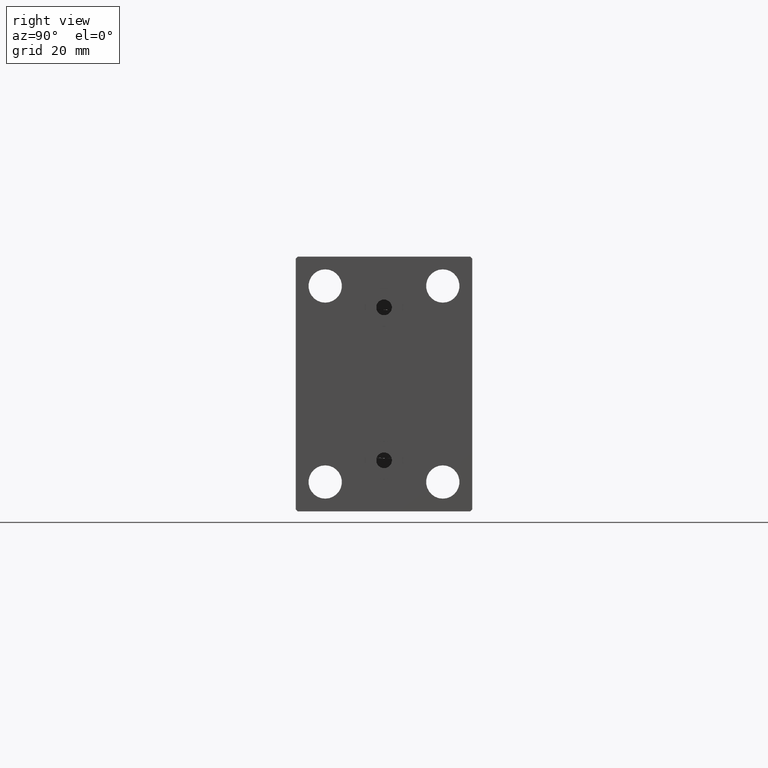
[diagram: clean part render]
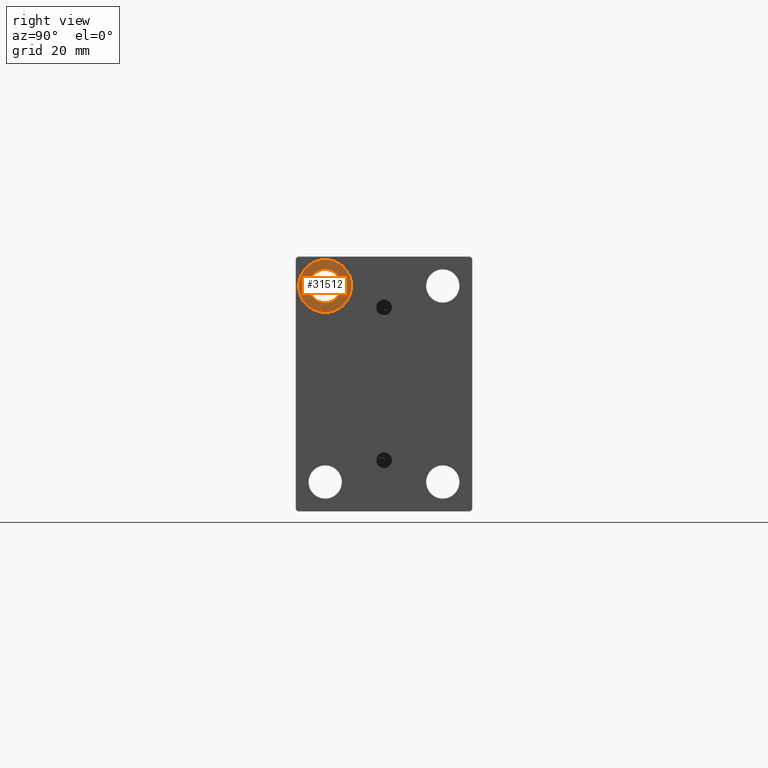
[diagram: same view with one face highlighted and labeled with its STEP entity id]
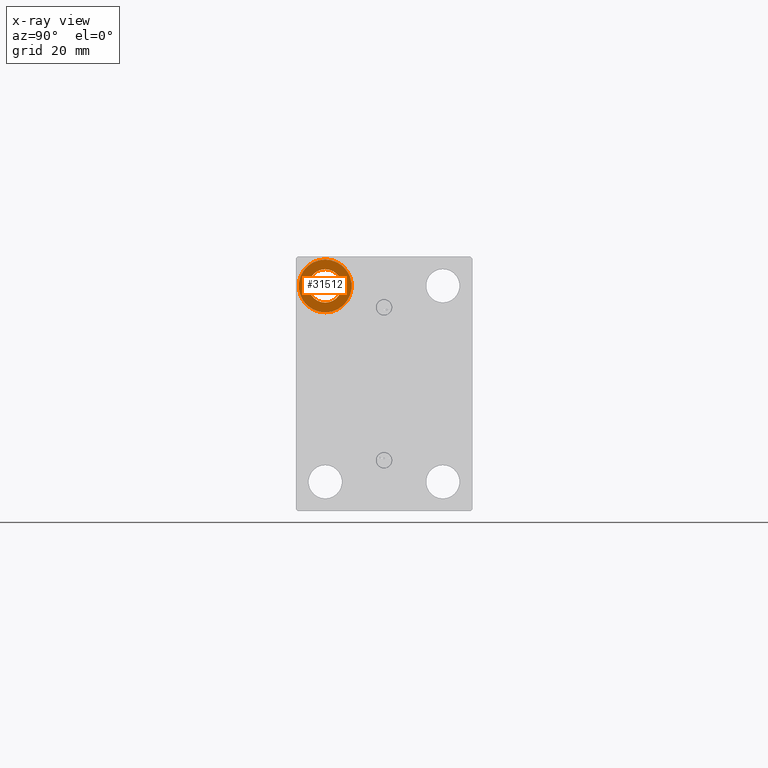
[diagram: x-ray of the same camera — body ghosted, the highlighted face saturated]
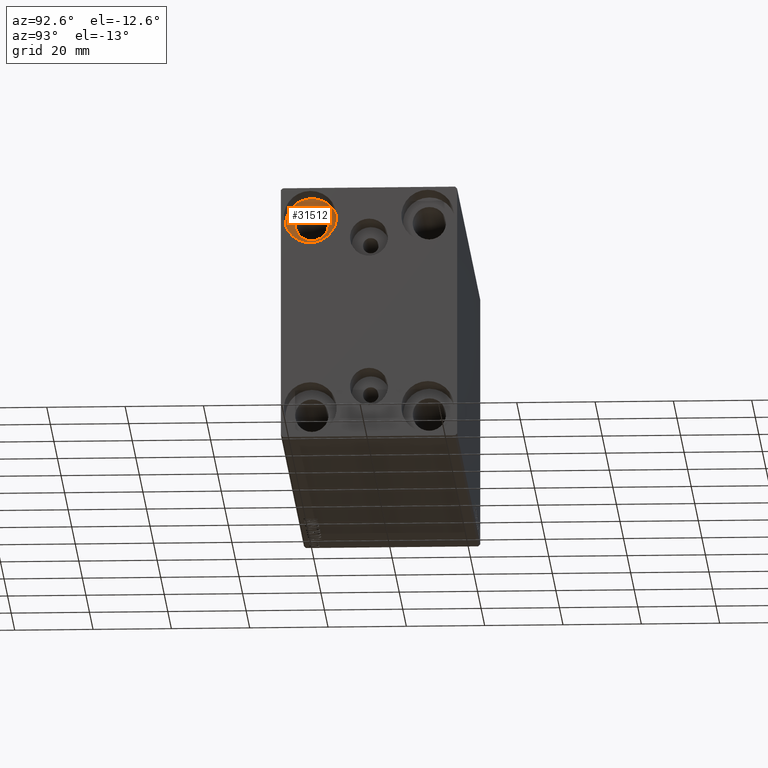
[diagram: same view with one face highlighted and labeled with its STEP entity id]
A machine part, right view. The second image highlights one B-rep face of the part: STEP entity #31512.
The next image is the same camera in x-ray: the body ghosted, the highlighted face saturated — about 0% of this face is hidden behind the body in this view.
A second angle (auxiliary view) of the same face is appended — the face is thin or edge-on in the first view.
In plain terms, the highlighted planar face has unit normal (1, 0, 0).
Its self-contained STEP definition (entity closure, byte-faithful):
#1358 = CARTESIAN_POINT ( 'NONE',  ( 121.0000000000000142, -14.99999999999999645, 18.25000000000000355 ) ) ;
#1681 = EDGE_CURVE ( 'NONE', #8982, #41203, #7240, .T. ) ;
#3136 = EDGE_LOOP ( 'NONE', ( #41488, #21167 ) ) ;
#3582 = CARTESIAN_POINT ( 'NONE',  ( 121.0000000000000142, -14.99999999999999645, 20.75000000000000355 ) ) ;
#6651 = CARTESIAN_POINT ( 'NONE',  ( 121.0000000000000142, 0.000000000000000000, 0.000000000000000000 ) ) ;
#7240 = CIRCLE ( 'NONE', #32942, 6.749999999999999112 ) ;
#8478 = CARTESIAN_POINT ( 'NONE',  ( 121.0000000000000142, -14.99999999999999645, 25.00000000000000000 ) ) ;
#8982 = VERTEX_POINT ( 'NONE', #21210 ) ;
#15936 = DIRECTION ( 'NONE',  ( -1.000000000000000000, -0.000000000000000000, -0.000000000000000000 ) ) ;
#17048 = EDGE_LOOP ( 'NONE', ( #31373, #26445 ) ) ;
#19148 = CARTESIAN_POINT ( 'NONE',  ( 121.0000000000000142, -14.99999999999999645, 25.00000000000000000 ) ) ;
#20431 = VERTEX_POINT ( 'NONE', #44132 ) ;
#21167 = ORIENTED_EDGE ( 'NONE', *, *, #21548, .T. ) ;
#21210 = CARTESIAN_POINT ( 'NONE',  ( 121.0000000000000142, -14.99999999999999645, 31.75000000000000000 ) ) ;
#21548 = EDGE_CURVE ( 'NONE', #27884, #20431, #34785, .T. ) ;
#21697 = AXIS2_PLACEMENT_3D ( 'NONE', #38441, #45325, #40586 ) ;
#22291 = AXIS2_PLACEMENT_3D ( 'NONE', #22702, #22486, #36740 ) ;
#22486 = DIRECTION ( 'NONE',  ( -1.000000000000000000, -0.000000000000000000, -0.000000000000000000 ) ) ;
#22489 = DIRECTION ( 'NONE',  ( -1.000000000000000000, -0.000000000000000000, -0.000000000000000000 ) ) ;
#22702 = CARTESIAN_POINT ( 'NONE',  ( 121.0000000000000142, -14.99999999999999645, 25.00000000000000000 ) ) ;
#24119 = DIRECTION ( 'NONE',  ( 1.000000000000000000, 0.000000000000000000, -0.000000000000000000 ) ) ;
#26445 = ORIENTED_EDGE ( 'NONE', *, *, #1681, .F. ) ;
#26540 = CIRCLE ( 'NONE', #30194, 6.749999999999999112 ) ;
#27126 = DIRECTION ( 'NONE',  ( 0.000000000000000000, 0.000000000000000000, 1.000000000000000000 ) ) ;
#27884 = VERTEX_POINT ( 'NONE', #3582 ) ;
#30194 = AXIS2_PLACEMENT_3D ( 'NONE', #8478, #22489, #36076 ) ;
#31373 = ORIENTED_EDGE ( 'NONE', *, *, #41240, .F. ) ;
#31512 = ADVANCED_FACE ( 'NONE', ( #37250, #34716 ), #44596, .T. ) ;
#32004 = EDGE_CURVE ( 'NONE', #20431, #27884, #39326, .T. ) ;
#32942 = AXIS2_PLACEMENT_3D ( 'NONE', #19148, #15936, #40304 ) ;
#34716 = FACE_BOUND ( 'NONE', #3136, .T. ) ;
#34785 = CIRCLE ( 'NONE', #22291, 4.249999999999996447 ) ;
#36076 = DIRECTION ( 'NONE',  ( 0.000000000000000000, 0.000000000000000000, 1.000000000000000000 ) ) ;
#36740 = DIRECTION ( 'NONE',  ( 0.000000000000000000, 0.000000000000000000, -1.000000000000000000 ) ) ;
#37250 = FACE_OUTER_BOUND ( 'NONE', #17048, .T. ) ;
#38441 = CARTESIAN_POINT ( 'NONE',  ( 121.0000000000000142, -14.99999999999999645, 25.00000000000000000 ) ) ;
#39326 = CIRCLE ( 'NONE', #21697, 4.249999999999996447 ) ;
#40042 = AXIS2_PLACEMENT_3D ( 'NONE', #6651, #24119, #27126 ) ;
#40304 = DIRECTION ( 'NONE',  ( 0.000000000000000000, 0.000000000000000000, 1.000000000000000000 ) ) ;
#40586 = DIRECTION ( 'NONE',  ( 0.000000000000000000, 0.000000000000000000, -1.000000000000000000 ) ) ;
#41203 = VERTEX_POINT ( 'NONE', #1358 ) ;
#41240 = EDGE_CURVE ( 'NONE', #41203, #8982, #26540, .T. ) ;
#41488 = ORIENTED_EDGE ( 'NONE', *, *, #32004, .T. ) ;
#44132 = CARTESIAN_POINT ( 'NONE',  ( 121.0000000000000142, -14.99999999999999645, 29.25000000000000000 ) ) ;
#44596 = PLANE ( 'NONE',  #40042 ) ;
#45325 = DIRECTION ( 'NONE',  ( -1.000000000000000000, -0.000000000000000000, -0.000000000000000000 ) ) ;